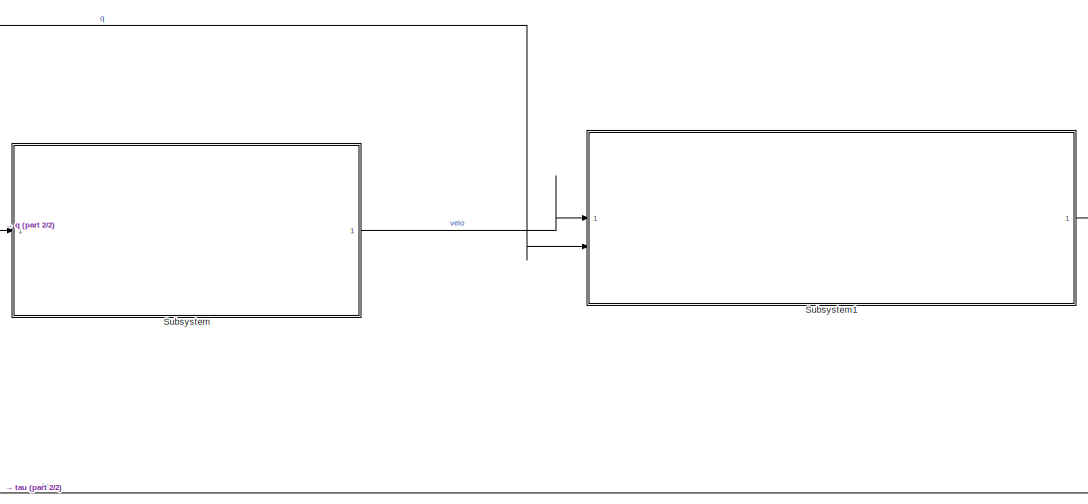
[diagram: root canvas - part 1/2, right side, full height]
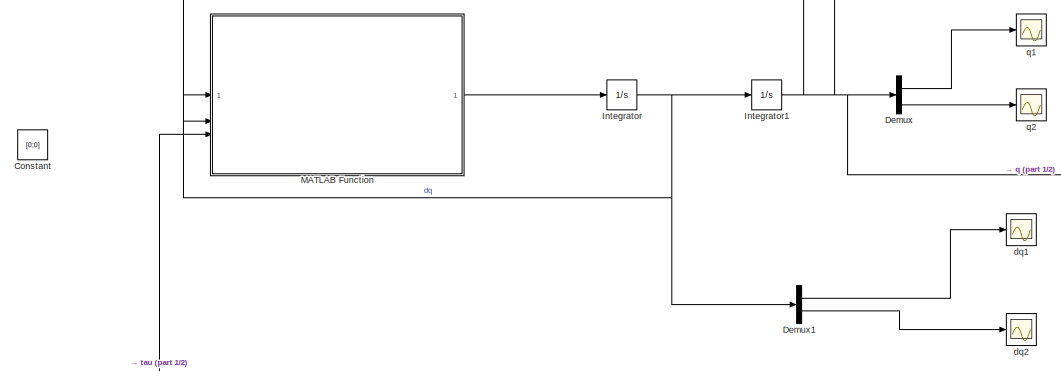
[diagram: root canvas - part 2/2, middle left region]
MODEL slx_190d724100c0
KIND model
CONFIG AbsTol = auto
CONFIG EnableMultiTasking = off
CONFIG FixedStep = auto
CONFIG MaxStep = auto
CONFIG MinStep = auto
CONFIG RelTol = 1e-3
CONFIG SampleTimeConstraint = Unconstrained
CONFIG SolverName = VariableStepAuto
CONFIG StartTime = 0.0
CONFIG StopTime = 4
BLOCK [Constant] Constant
  Value = [0;0]
BLOCK [Demux] Demux
  Outputs = 2
BLOCK [Demux] Demux1
  Outputs = 2
BLOCK [Integrator] Integrator
  InitialCondition = [0;0]
BLOCK [Integrator] Integrator1
  InitialCondition = [0;0]
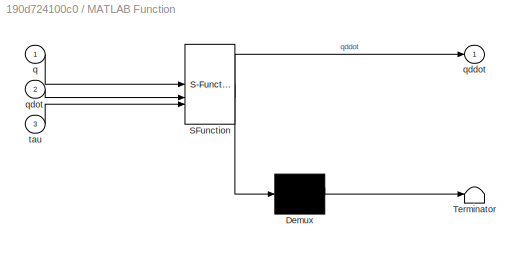
BLOCK [SubSystem] MATLAB Function
  ErrorFcn = Stateflow.Translate.translate
  LibrarySourceBlock = simulink/User-Defined\nFunctions/MATLAB Function
  PermitHierarchicalResolution = ExplicitOnly
  SFBlockType = MATLAB Function
  TreatAsAtomicUnit = on
BLOCK [Demux] MATLAB Function/ Demux 
  Outputs = 1
BLOCK [S-Function] MATLAB Function/ SFunction 
  EnableBusSupport = on
  FunctionName = sf_sfun
  PortCounts = [3 2]
  SFcnIsStateOwnerBlock = off
  SFunctionDeploymentMode = off
  Tag = Stateflow S-Function 2
BLOCK [Terminator] MATLAB Function/ Terminator 
BLOCK [Inport] MATLAB Function/q
BLOCK [Outport] MATLAB Function/qddot
BLOCK [Inport] MATLAB Function/qdot
  Port = 2
BLOCK [Inport] MATLAB Function/tau
  Port = 3
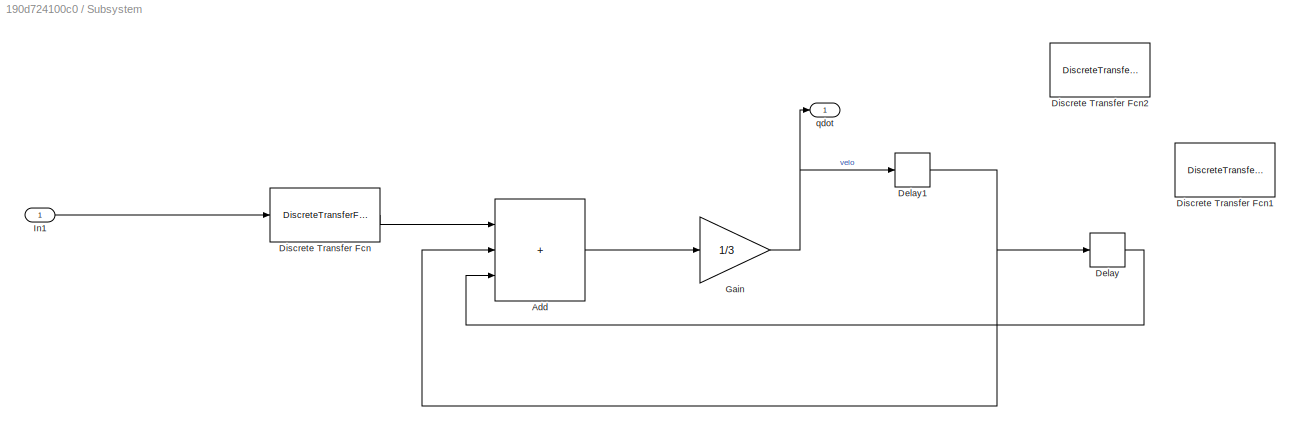
BLOCK [SubSystem] Subsystem
BLOCK [Sum] Subsystem/Add
  IconShape = rectangular
  Inputs = +++
BLOCK [Delay] Subsystem/Delay
  DelayLength = 1
  InputPortMap = u0
  SampleTime = .001
BLOCK [Delay] Subsystem/Delay1
  DelayLength = 1
  InputPortMap = u0
  SampleTime = .001
BLOCK [DiscreteTransferFcn] Subsystem/Discrete Transfer Fcn
  Denominator = [0.001 0]
  InputPortMap = u0
  Numerator = [1 -1]
  SampleTime = .001
BLOCK [DiscreteTransferFcn] Subsystem/Discrete Transfer Fcn1
  Denominator = [1 0]
  InputPortMap = u0
  SampleTime = .001
BLOCK [DiscreteTransferFcn] Subsystem/Discrete Transfer Fcn2
  Denominator = [1 0]
  InputPortMap = u0
BLOCK [Gain] Subsystem/Gain
  Gain = 1/3
BLOCK [Inport] Subsystem/In1
BLOCK [Outport] Subsystem/qdot
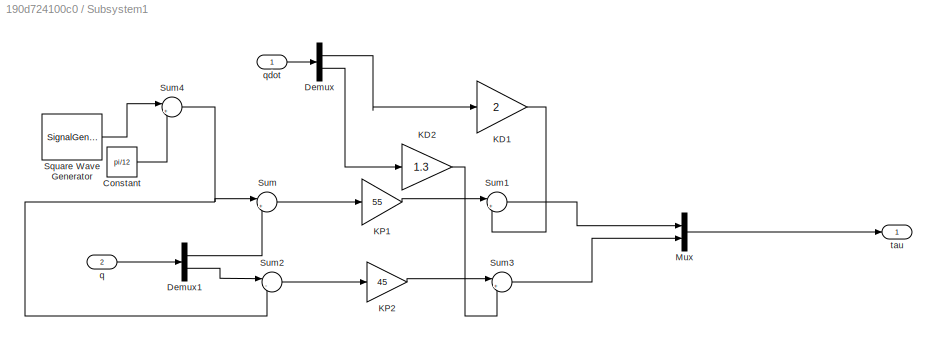
BLOCK [SubSystem] Subsystem1
BLOCK [Constant] Subsystem1/Constant
  Value = pi/12
BLOCK [Demux] Subsystem1/Demux
  Outputs = 2
BLOCK [Demux] Subsystem1/Demux1
  Outputs = 2
BLOCK [Gain] Subsystem1/KD1
  Gain = 2
BLOCK [Gain] Subsystem1/KD2
  Gain = 1.3
BLOCK [Gain] Subsystem1/KP1
  Gain = 55
BLOCK [Gain] Subsystem1/KP2
  Gain = 45
BLOCK [Mux] Subsystem1/Mux
  DisplayOption = bar
  Inputs = 2
BLOCK [SignalGenerator] Subsystem1/Square Wave Generator
  Amplitude = pi/12
  WaveForm = square
BLOCK [Sum] Subsystem1/Sum
  Inputs = |+-
BLOCK [Sum] Subsystem1/Sum1
  Inputs = |+-
BLOCK [Sum] Subsystem1/Sum2
  Inputs = |-+
BLOCK [Sum] Subsystem1/Sum3
  Inputs = |+-
BLOCK [Sum] Subsystem1/Sum4
  Inputs = |++
BLOCK [Inport] Subsystem1/q
  Port = 2
BLOCK [Inport] Subsystem1/qdot
BLOCK [Outport] Subsystem1/tau
BLOCK [Scope] dq1
  Floating = off
  NumInputPorts = 1
  ScopeSpecificationString = Simulink.scopes.TimeScopeBlockCfg('CurrentConfiguration', extmgr.ConfigurationSet(extmgr.Configuration('Core','General UI',true),extmgr.Configuration('Core','Source UI',true),extmgr.Configuration('Sources','WiredSimulink',true,'DataLoggingVariableName','ScopeData2'),extmgr.Configuration('Visuals','Time Domain',true,'SerializedDisplays',{struct('MinYLimReal','-12.78903','MaxYLimReal','13.79705','YL...<+1373ch>
BLOCK [Scope] dq2
  Floating = off
  NumInputPorts = 1
  ScopeSpecificationString = Simulink.scopes.TimeScopeBlockCfg('CurrentConfiguration', extmgr.ConfigurationSet(extmgr.Configuration('Core','General UI',true),extmgr.Configuration('Core','Source UI',true),extmgr.Configuration('Sources','WiredSimulink',true,'DataLoggingVariableName','ScopeData3'),extmgr.Configuration('Visuals','Time Domain',true,'SerializedDisplays',{struct('MinYLimReal','-18.65851','MaxYLimReal','18.24676','YL...<+1402ch>
BLOCK [Scope] q1
  Floating = off
  NumInputPorts = 1
  ScopeSpecificationString = Simulink.scopes.TimeScopeBlockCfg('CurrentConfiguration', extmgr.ConfigurationSet(extmgr.Configuration('Core','General UI',true),extmgr.Configuration('Core','Source UI',true),extmgr.Configuration('Sources','WiredSimulink',true),extmgr.Configuration('Visuals','Time Domain',true,'SerializedDisplays',{struct('MinYLimReal','-0.06634','MaxYLimReal','0.59677','YLabelReal','','MinYLimMag','0.00000','MaxY...<+1356ch>
BLOCK [Scope] q2
  Floating = off
  NumInputPorts = 1
  ScopeSpecificationString = Simulink.scopes.TimeScopeBlockCfg('CurrentConfiguration', extmgr.ConfigurationSet(extmgr.Configuration('Core','General UI',true),extmgr.Configuration('Core','Source UI',true),extmgr.Configuration('Sources','WiredSimulink',true,'DataLoggingVariableName','ScopeData1'),extmgr.Configuration('Visuals','Time Domain',true,'SerializedDisplays',{struct('MinYLimReal','-0.06615','MaxYLimReal','0.59536','YLab...<+1395ch>
LINE Demux1:1 -> dq1:1
LINE Demux1:2 -> dq2:1
LINE Demux:1 -> q1:1
LINE Demux:2 -> q2:1
NET Integrator1:1 -> Demux:1, MATLAB Function:1, Subsystem1:2, Subsystem:1
NET Integrator:1 -> Demux1:1, Integrator1:1, MATLAB Function:2
LINE MATLAB Function:1 -> Integrator:1
LINE Subsystem/Add:1 -> Subsystem/Gain:1
NET Subsystem/Delay1:1 -> Subsystem/Add:2, Subsystem/Delay:1
LINE Subsystem/Delay:1 -> Subsystem/Add:3
LINE Subsystem/Discrete Transfer Fcn:1 -> Subsystem/Add:1
NET Subsystem/Gain:1 -> Subsystem/Delay1:1, Subsystem/qdot:1
LINE Subsystem/In1:1 -> Subsystem/Discrete Transfer Fcn:1
LINE Subsystem1/Constant:1 -> Subsystem1/Sum4:2
LINE Subsystem1/Demux1:1 -> Subsystem1/Sum:2
LINE Subsystem1/Demux1:2 -> Subsystem1/Sum2:1
LINE Subsystem1/Demux:1 -> Subsystem1/KD1:1
LINE Subsystem1/Demux:2 -> Subsystem1/KD2:1
LINE Subsystem1/KD1:1 -> Subsystem1/Sum1:2
LINE Subsystem1/KD2:1 -> Subsystem1/Sum3:2
LINE Subsystem1/KP1:1 -> Subsystem1/Sum1:1
LINE Subsystem1/KP2:1 -> Subsystem1/Sum3:1
LINE Subsystem1/Mux:1 -> Subsystem1/tau:1
LINE Subsystem1/Square Wave Generator:1 -> Subsystem1/Sum4:1
LINE Subsystem1/Sum1:1 -> Subsystem1/Mux:1
LINE Subsystem1/Sum2:1 -> Subsystem1/KP2:1
LINE Subsystem1/Sum3:1 -> Subsystem1/Mux:2
NET Subsystem1/Sum4:1 -> Subsystem1/Sum2:2, Subsystem1/Sum:1
LINE Subsystem1/Sum:1 -> Subsystem1/KP1:1
LINE Subsystem1/q:1 -> Subsystem1/Demux1:1
LINE Subsystem1/qdot:1 -> Subsystem1/Demux:1
LINE Subsystem1:1 -> MATLAB Function:3
LINE Subsystem:1 -> Subsystem1:1
note: NET lines group one-source signal fan-out (src -> all destinations, sorted); 1:1 wires keep LINE
CHART MATLAB Function states=1 transitions=1
  STATE_LABEL 'eML_blk_kernel()'
  STATE_LABEL 'SCRIPT:\nfunction qddot = fcn(q, qdot, tau)\n\ntheta2M = q(1);\ntheta3M = q(2);\ntheta2M_dot = qdot(1);\ntheta3M_dot = qdot(2);\ng = 9.81;\np = [0.0300;0.0128;0.0076;0.0753;0.0298];\nD_theta = [p(1), -p(3)*sin(theta3M - theta2M);\n           -p(3)*sin(theta3M - theta2M), p(2)];\n\nC_theta = [0, -p(3)*cos(theta3M - theta2M)*theta3M_dot;\n           p(3)*cos(theta3M - theta2M)*theta2M_dot, 0];\nG_theta = [-p(4)*g...<+94ch>'
CHART  states=0 transitions=0
